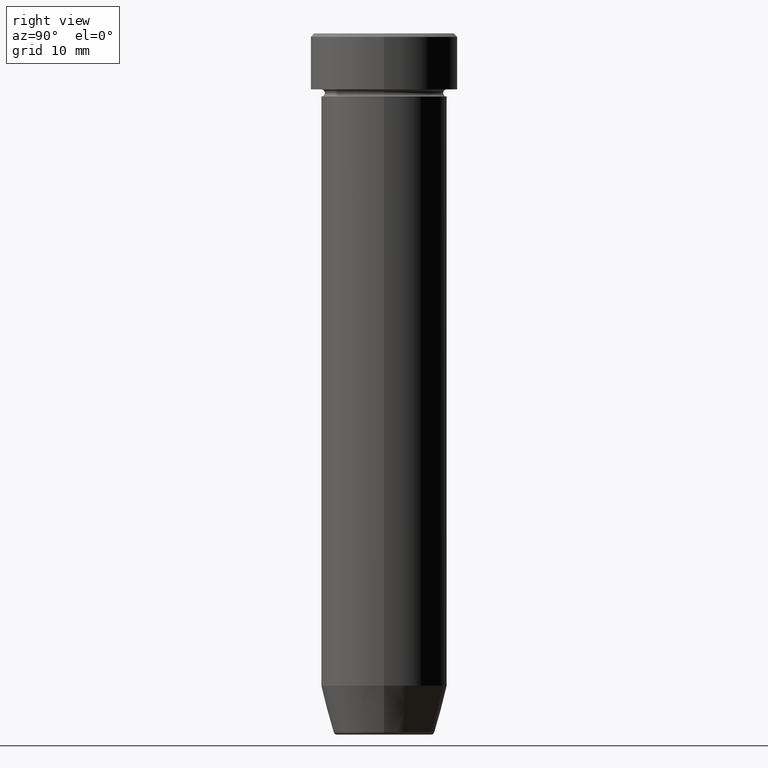
[diagram: clean part render]
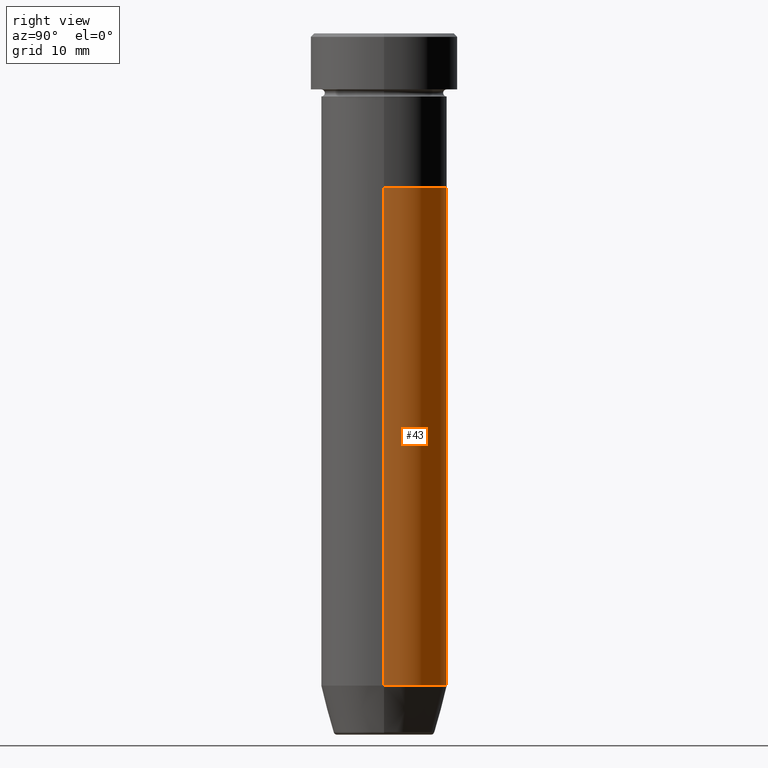
[diagram: same view with one face highlighted and labeled with its STEP entity id]
A machine part, right view. The second image highlights one B-rep face of the part: STEP entity #43.
In plain terms, the highlighted cylindrical surface (partial cylindrical patch) has radius 9 mm, axis along (-0, -0, 1).
Its self-contained STEP definition (entity closure, byte-faithful):
#29 = VERTEX_POINT ( 'NONE', #46 ) ;
#30 = DIRECTION ( 'NONE',  ( 1.000000000000000000, 0.000000000000000000, 0.000000000000000000 ) ) ;
#34 = EDGE_CURVE ( 'NONE', #73, #352, #136, .T. ) ;
#43 = ADVANCED_FACE ( 'NONE', ( #321 ), #232, .T. ) ;
#46 = CARTESIAN_POINT ( 'NONE',  ( 9.000000000000000000, 0.000000000000000000, -22.00000000000000000 ) ) ;
#66 = ORIENTED_EDGE ( 'NONE', *, *, #256, .T. ) ;
#72 = CARTESIAN_POINT ( 'NONE',  ( 0.000000000000000000, 0.000000000000000000, -22.00000000000000000 ) ) ;
#73 = VERTEX_POINT ( 'NONE', #427 ) ;
#83 = DIRECTION ( 'NONE',  ( 1.000000000000000000, 0.000000000000000000, 0.000000000000000000 ) ) ;
#98 = DIRECTION ( 'NONE',  ( -0.000000000000000000, -0.000000000000000000, 1.000000000000000000 ) ) ;
#105 = VERTEX_POINT ( 'NONE', #418 ) ;
#115 = AXIS2_PLACEMENT_3D ( 'NONE', #415, #142, #83 ) ;
#136 = LINE ( 'NONE', #556, #486 ) ;
#142 = DIRECTION ( 'NONE',  ( -0.000000000000000000, -0.000000000000000000, 1.000000000000000000 ) ) ;
#147 = AXIS2_PLACEMENT_3D ( 'NONE', #72, #260, #30 ) ;
#209 = ORIENTED_EDGE ( 'NONE', *, *, #34, .T. ) ;
#232 = CYLINDRICAL_SURFACE ( 'NONE', #115, 9.000000000000000000 ) ;
#233 = AXIS2_PLACEMENT_3D ( 'NONE', #296, #481, #379 ) ;
#241 = CIRCLE ( 'NONE', #233, 9.000000000000000000 ) ;
#256 = EDGE_CURVE ( 'NONE', #105, #73, #241, .T. ) ;
#260 = DIRECTION ( 'NONE',  ( -0.000000000000000000, -0.000000000000000000, 1.000000000000000000 ) ) ;
#296 = CARTESIAN_POINT ( 'NONE',  ( 0.000000000000000000, 0.000000000000000000, -93.00000000000000000 ) ) ;
#317 = CARTESIAN_POINT ( 'NONE',  ( 9.000000000000000000, 0.000000000000000000, 0.000000000000000000 ) ) ;
#321 = FACE_OUTER_BOUND ( 'NONE', #536, .T. ) ;
#345 = ORIENTED_EDGE ( 'NONE', *, *, #389, .F. ) ;
#350 = CARTESIAN_POINT ( 'NONE',  ( -9.000000000000000000, 1.102182119232617714E-15, -22.00000000000000000 ) ) ;
#352 = VERTEX_POINT ( 'NONE', #350 ) ;
#369 = EDGE_CURVE ( 'NONE', #105, #29, #399, .T. ) ;
#379 = DIRECTION ( 'NONE',  ( 1.000000000000000000, 0.000000000000000000, 0.000000000000000000 ) ) ;
#389 = EDGE_CURVE ( 'NONE', #29, #352, #542, .T. ) ;
#399 = LINE ( 'NONE', #317, #531 ) ;
#415 = CARTESIAN_POINT ( 'NONE',  ( 0.000000000000000000, 0.000000000000000000, 0.000000000000000000 ) ) ;
#418 = CARTESIAN_POINT ( 'NONE',  ( 9.000000000000000000, 0.000000000000000000, -93.00000000000000000 ) ) ;
#427 = CARTESIAN_POINT ( 'NONE',  ( -9.000000000000000000, 1.102182119232617714E-15, -93.00000000000000000 ) ) ;
#434 = ORIENTED_EDGE ( 'NONE', *, *, #369, .F. ) ;
#481 = DIRECTION ( 'NONE',  ( -0.000000000000000000, -0.000000000000000000, 1.000000000000000000 ) ) ;
#486 = VECTOR ( 'NONE', #98, 1000.000000000000000 ) ;
#531 = VECTOR ( 'NONE', #533, 1000.000000000000000 ) ;
#533 = DIRECTION ( 'NONE',  ( -0.000000000000000000, -0.000000000000000000, 1.000000000000000000 ) ) ;
#536 = EDGE_LOOP ( 'NONE', ( #66, #209, #345, #434 ) ) ;
#542 = CIRCLE ( 'NONE', #147, 9.000000000000000000 ) ;
#556 = CARTESIAN_POINT ( 'NONE',  ( -9.000000000000000000, 1.102182119232617714E-15, 0.000000000000000000 ) ) ;